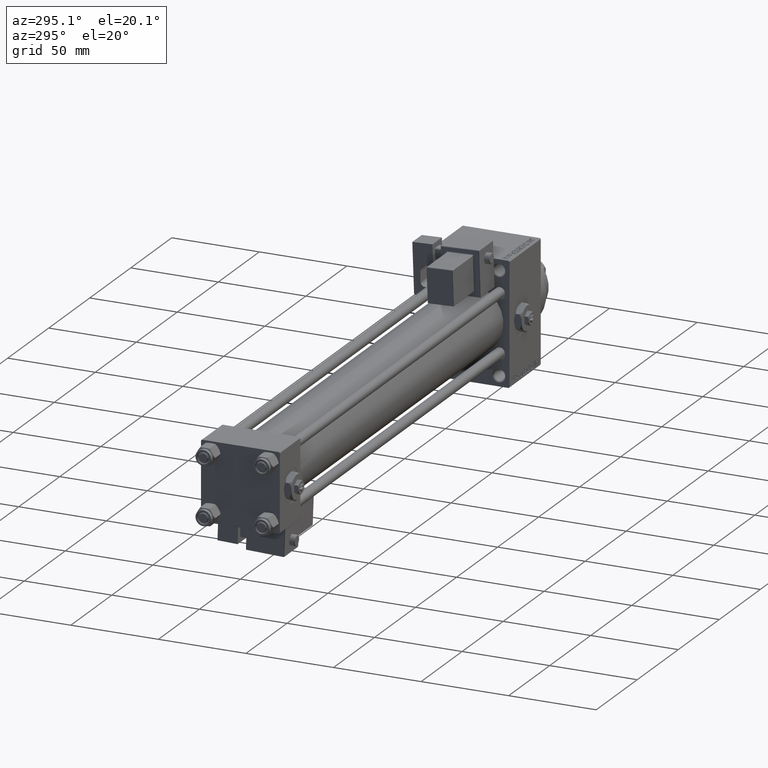
[diagram: clean part render]
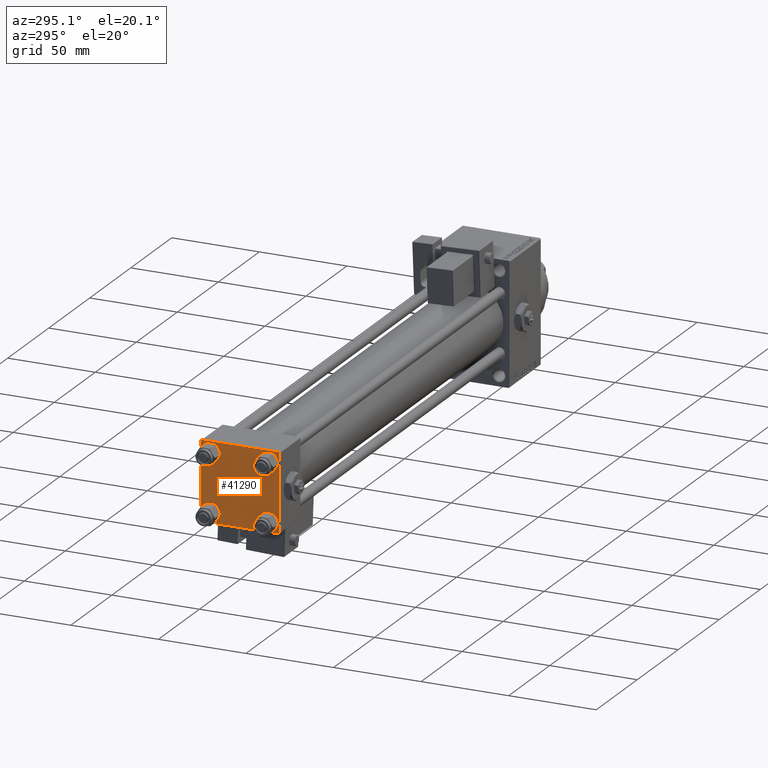
[diagram: same view with one face highlighted and labeled with its STEP entity id]
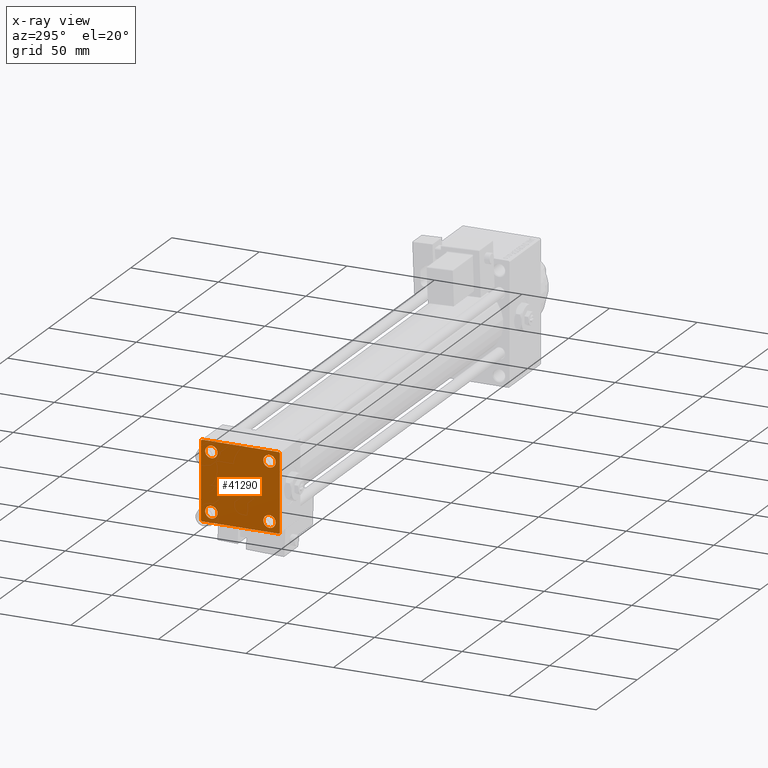
[diagram: x-ray of the same camera — body ghosted, the highlighted face saturated]
A machine part, auxiliary view. The second image highlights one B-rep face of the part: STEP entity #41290.
The next image is the same camera in x-ray: the body ghosted, the highlighted face saturated — about 0% of this face is hidden behind the body in this view.
In plain terms, the highlighted planar face has unit normal (-1, 0, 0).
Its self-contained STEP definition (entity closure, byte-faithful):
#732 = CARTESIAN_POINT ( 'NONE',  ( 0.000000000000000000, 22.24999999999999645, 22.24999999999999645 ) ) ;
#1467 = ORIENTED_EDGE ( 'NONE', *, *, #32945, .T. ) ;
#2297 = ORIENTED_EDGE ( 'NONE', *, *, #50184, .T. ) ;
#2436 = DIRECTION ( 'NONE',  ( 1.000000000000000000, -0.000000000000000000, 0.000000000000000000 ) ) ;
#2458 = CARTESIAN_POINT ( 'NONE',  ( 0.000000000000000000, 16.59999999999999787, -16.60000000000000497 ) ) ;
#2509 = AXIS2_PLACEMENT_3D ( 'NONE', #42312, #6231, #13745 ) ;
#2577 = FACE_BOUND ( 'NONE', #36856, .T. ) ;
#2979 = CARTESIAN_POINT ( 'NONE',  ( 0.000000000000000000, 16.59999999999999787, 13.10000000000000675 ) ) ;
#3406 = EDGE_CURVE ( 'NONE', #32761, #35693, #51348, .T. ) ;
#4151 = CARTESIAN_POINT ( 'NONE',  ( 0.000000000000000000, 22.25000000000014566, -22.24999999999984013 ) ) ;
#4380 = DIRECTION ( 'NONE',  ( 0.000000000000000000, -1.000000000000000000, -2.312964634635742957E-16 ) ) ;
#4607 = DIRECTION ( 'NONE',  ( -0.000000000000000000, 0.7071067811865525687, 0.7071067811865425767 ) ) ;
#5542 = CARTESIAN_POINT ( 'NONE',  ( 0.000000000000000000, -22.50000000000000000, 22.50000000000000000 ) ) ;
#5973 = FACE_BOUND ( 'NONE', #46981, .T. ) ;
#6231 = DIRECTION ( 'NONE',  ( -1.000000000000000000, 0.000000000000000000, -0.000000000000000000 ) ) ;
#6903 = ORIENTED_EDGE ( 'NONE', *, *, #28215, .T. ) ;
#7039 = DIRECTION ( 'NONE',  ( 1.000000000000000000, -0.000000000000000000, 0.000000000000000000 ) ) ;
#7928 = CARTESIAN_POINT ( 'NONE',  ( 0.000000000000000000, 16.59999999999999787, 20.10000000000000142 ) ) ;
#9060 = LINE ( 'NONE', #4151, #42971 ) ;
#9703 = ORIENTED_EDGE ( 'NONE', *, *, #19402, .T. ) ;
#11177 = CARTESIAN_POINT ( 'NONE',  ( 0.000000000000000000, -16.59999999999999076, -16.60000000000000853 ) ) ;
#12330 = VECTOR ( 'NONE', #12802, 1000.000000000000000 ) ;
#12411 = CARTESIAN_POINT ( 'NONE',  ( 0.000000000000000000, 22.50000000000000000, -22.49999999999999645 ) ) ;
#12802 = DIRECTION ( 'NONE',  ( 0.000000000000000000, -0.7071067811865426878, 0.7071067811865524577 ) ) ;
#13253 = CARTESIAN_POINT ( 'NONE',  ( 0.000000000000000000, 16.59999999999999787, -20.10000000000000142 ) ) ;
#13440 = CARTESIAN_POINT ( 'NONE',  ( 0.000000000000000000, 16.59999999999999787, 16.60000000000000497 ) ) ;
#13745 = DIRECTION ( 'NONE',  ( -0.000000000000000000, 0.000000000000000000, 1.000000000000000000 ) ) ;
#13999 = FACE_OUTER_BOUND ( 'NONE', #36561, .T. ) ;
#14393 = DIRECTION ( 'NONE',  ( 0.000000000000000000, 0.000000000000000000, 1.000000000000000000 ) ) ;
#14531 = CARTESIAN_POINT ( 'NONE',  ( 0.000000000000000000, -22.50000000000000000, 22.00000000000000000 ) ) ;
#14808 = VERTEX_POINT ( 'NONE', #13253 ) ;
#15399 = ORIENTED_EDGE ( 'NONE', *, *, #18984, .T. ) ;
#15632 = CARTESIAN_POINT ( 'NONE',  ( 0.000000000000000000, -16.59999999999999076, 13.10000000000001030 ) ) ;
#15953 = ORIENTED_EDGE ( 'NONE', *, *, #40750, .T. ) ;
#17089 = ORIENTED_EDGE ( 'NONE', *, *, #42544, .T. ) ;
#17301 = EDGE_CURVE ( 'NONE', #48600, #28225, #30448, .T. ) ;
#17736 = CARTESIAN_POINT ( 'NONE',  ( 0.000000000000000000, 22.50000000000000000, 22.50000000000000355 ) ) ;
#17988 = LINE ( 'NONE', #5542, #31398 ) ;
#18330 = AXIS2_PLACEMENT_3D ( 'NONE', #21908, #2436, #50207 ) ;
#18943 = ORIENTED_EDGE ( 'NONE', *, *, #37354, .F. ) ;
#18984 = EDGE_CURVE ( 'NONE', #31241, #23080, #30478, .T. ) ;
#19219 = DIRECTION ( 'NONE',  ( 0.000000000000000000, 0.000000000000000000, 1.000000000000000000 ) ) ;
#19402 = EDGE_CURVE ( 'NONE', #23080, #29144, #9060, .T. ) ;
#19443 = CARTESIAN_POINT ( 'NONE',  ( 0.000000000000000000, -16.59999999999999076, 16.60000000000000853 ) ) ;
#19498 = EDGE_CURVE ( 'NONE', #36280, #35693, #29573, .T. ) ;
#20007 = CARTESIAN_POINT ( 'NONE',  ( 0.000000000000000000, -16.59999999999999076, 20.10000000000000853 ) ) ;
#20245 = DIRECTION ( 'NONE',  ( -0.000000000000000000, -0.7071067811865426878, -0.7071067811865524577 ) ) ;
#20307 = VECTOR ( 'NONE', #35534, 1000.000000000000114 ) ;
#20705 = CIRCLE ( 'NONE', #30696, 3.499999999999996003 ) ;
#21460 = VERTEX_POINT ( 'NONE', #39665 ) ;
#21527 = PLANE ( 'NONE',  #2509 ) ;
#21908 = CARTESIAN_POINT ( 'NONE',  ( 0.000000000000000000, -16.59999999999999076, 16.60000000000000853 ) ) ;
#22030 = CARTESIAN_POINT ( 'NONE',  ( 0.000000000000000000, 16.59999999999999787, 16.60000000000000497 ) ) ;
#22500 = CARTESIAN_POINT ( 'NONE',  ( 0.000000000000000000, 16.59999999999999787, -16.60000000000000497 ) ) ;
#22868 = AXIS2_PLACEMENT_3D ( 'NONE', #2458, #49976, #14393 ) ;
#23080 = VERTEX_POINT ( 'NONE', #51179 ) ;
#23262 = AXIS2_PLACEMENT_3D ( 'NONE', #22500, #34202, #37314 ) ;
#25453 = AXIS2_PLACEMENT_3D ( 'NONE', #13440, #44884, #48521 ) ;
#25664 = DIRECTION ( 'NONE',  ( 0.000000000000000000, 0.000000000000000000, 1.000000000000000000 ) ) ;
#25876 = DIRECTION ( 'NONE',  ( 0.000000000000000000, 0.000000000000000000, 1.000000000000000000 ) ) ;
#26534 = EDGE_CURVE ( 'NONE', #36280, #31241, #44095, .T. ) ;
#27251 = LINE ( 'NONE', #12411, #42823 ) ;
#28215 = EDGE_CURVE ( 'NONE', #14808, #32443, #41145, .T. ) ;
#28225 = VERTEX_POINT ( 'NONE', #2979 ) ;
#29144 = VERTEX_POINT ( 'NONE', #30779 ) ;
#29573 = LINE ( 'NONE', #33988, #47120 ) ;
#29805 = ORIENTED_EDGE ( 'NONE', *, *, #26534, .T. ) ;
#30448 = CIRCLE ( 'NONE', #25453, 3.499999999999996003 ) ;
#30478 = LINE ( 'NONE', #17736, #32999 ) ;
#30696 = AXIS2_PLACEMENT_3D ( 'NONE', #22030, #37885, #25664 ) ;
#30779 = CARTESIAN_POINT ( 'NONE',  ( 0.000000000000000000, 21.99999999999999289, -22.49999999999999645 ) ) ;
#30808 = AXIS2_PLACEMENT_3D ( 'NONE', #11177, #7039, #19219 ) ;
#30901 = CARTESIAN_POINT ( 'NONE',  ( 0.000000000000000000, -22.50000000000000000, -21.99999999999997158 ) ) ;
#31241 = VERTEX_POINT ( 'NONE', #45578 ) ;
#31398 = VECTOR ( 'NONE', #37209, 1000.000000000000000 ) ;
#31514 = CARTESIAN_POINT ( 'NONE',  ( 0.000000000000000000, -21.99999999999997868, 22.50000000000000000 ) ) ;
#32007 = EDGE_CURVE ( 'NONE', #29144, #49227, #27251, .T. ) ;
#32443 = VERTEX_POINT ( 'NONE', #49141 ) ;
#32644 = ORIENTED_EDGE ( 'NONE', *, *, #37222, .T. ) ;
#32761 = VERTEX_POINT ( 'NONE', #14531 ) ;
#32813 = VERTEX_POINT ( 'NONE', #30901 ) ;
#32945 = EDGE_CURVE ( 'NONE', #39356, #36235, #38710, .T. ) ;
#32999 = VECTOR ( 'NONE', #49164, 1000.000000000000000 ) ;
#33988 = CARTESIAN_POINT ( 'NONE',  ( 0.000000000000000000, 22.50000000000000000, 22.50000000000000355 ) ) ;
#34202 = DIRECTION ( 'NONE',  ( 1.000000000000000000, -0.000000000000000000, 0.000000000000000000 ) ) ;
#34558 = CARTESIAN_POINT ( 'NONE',  ( 0.000000000000000000, -21.99999999999997158, -22.50000000000000711 ) ) ;
#34693 = VERTEX_POINT ( 'NONE', #43263 ) ;
#35296 = DIRECTION ( 'NONE',  ( 1.000000000000000000, -0.000000000000000000, 0.000000000000000000 ) ) ;
#35534 = DIRECTION ( 'NONE',  ( 0.000000000000000000, 0.7071067811865474617, -0.7071067811865474617 ) ) ;
#35693 = VERTEX_POINT ( 'NONE', #31514 ) ;
#35733 = CIRCLE ( 'NONE', #23262, 3.499999999999996003 ) ;
#35948 = LINE ( 'NONE', #39846, #12330 ) ;
#36235 = VERTEX_POINT ( 'NONE', #20007 ) ;
#36280 = VERTEX_POINT ( 'NONE', #48567 ) ;
#36561 = EDGE_LOOP ( 'NONE', ( #15399, #9703, #45476, #32644, #18943, #42310, #42263, #29805 ) ) ;
#36574 = CIRCLE ( 'NONE', #18330, 3.499999999999996003 ) ;
#36856 = EDGE_LOOP ( 'NONE', ( #45359, #50256 ) ) ;
#37209 = DIRECTION ( 'NONE',  ( 0.000000000000000000, 0.000000000000000000, -1.000000000000000000 ) ) ;
#37222 = EDGE_CURVE ( 'NONE', #49227, #32813, #35948, .T. ) ;
#37314 = DIRECTION ( 'NONE',  ( 0.000000000000000000, 0.000000000000000000, 1.000000000000000000 ) ) ;
#37354 = EDGE_CURVE ( 'NONE', #32761, #32813, #17988, .T. ) ;
#37885 = DIRECTION ( 'NONE',  ( 1.000000000000000000, -0.000000000000000000, 0.000000000000000000 ) ) ;
#38161 = FACE_BOUND ( 'NONE', #45889, .T. ) ;
#38710 = CIRCLE ( 'NONE', #39557, 3.499999999999996003 ) ;
#39356 = VERTEX_POINT ( 'NONE', #15632 ) ;
#39557 = AXIS2_PLACEMENT_3D ( 'NONE', #19443, #35296, #40221 ) ;
#39665 = CARTESIAN_POINT ( 'NONE',  ( 0.000000000000000000, -16.59999999999999076, -20.10000000000000497 ) ) ;
#39762 = EDGE_CURVE ( 'NONE', #28225, #48600, #20705, .T. ) ;
#39846 = CARTESIAN_POINT ( 'NONE',  ( 0.000000000000000000, -22.25000000000014566, -22.24999999999984013 ) ) ;
#40221 = DIRECTION ( 'NONE',  ( 0.000000000000000000, 0.000000000000000000, 1.000000000000000000 ) ) ;
#40750 = EDGE_CURVE ( 'NONE', #34693, #21460, #48947, .T. ) ;
#40818 = VECTOR ( 'NONE', #4607, 999.9999999999998863 ) ;
#41145 = CIRCLE ( 'NONE', #22868, 3.499999999999996003 ) ;
#41290 = ADVANCED_FACE ( 'NONE', ( #38161, #5973, #41802, #2577, #13999 ), #21527, .T. ) ;
#41556 = CIRCLE ( 'NONE', #30808, 3.499999999999996003 ) ;
#41575 = EDGE_CURVE ( 'NONE', #32443, #14808, #35733, .T. ) ;
#41710 = EDGE_LOOP ( 'NONE', ( #47135, #6903 ) ) ;
#41802 = FACE_BOUND ( 'NONE', #41710, .T. ) ;
#41984 = CARTESIAN_POINT ( 'NONE',  ( 0.000000000000000000, -16.59999999999999076, -16.60000000000000853 ) ) ;
#42263 = ORIENTED_EDGE ( 'NONE', *, *, #19498, .F. ) ;
#42310 = ORIENTED_EDGE ( 'NONE', *, *, #3406, .T. ) ;
#42312 = CARTESIAN_POINT ( 'NONE',  ( 0.000000000000000000, 0.000000000000000000, 0.000000000000000000 ) ) ;
#42544 = EDGE_CURVE ( 'NONE', #36235, #39356, #36574, .T. ) ;
#42823 = VECTOR ( 'NONE', #4380, 1000.000000000000000 ) ;
#42971 = VECTOR ( 'NONE', #20245, 1000.000000000000000 ) ;
#43263 = CARTESIAN_POINT ( 'NONE',  ( 0.000000000000000000, -16.59999999999999076, -13.10000000000001030 ) ) ;
#43309 = CARTESIAN_POINT ( 'NONE',  ( -0.000000000000000000, -22.24999999999984013, 22.25000000000015277 ) ) ;
#44095 = LINE ( 'NONE', #732, #20307 ) ;
#44884 = DIRECTION ( 'NONE',  ( 1.000000000000000000, -0.000000000000000000, 0.000000000000000000 ) ) ;
#45359 = ORIENTED_EDGE ( 'NONE', *, *, #17301, .T. ) ;
#45416 = DIRECTION ( 'NONE',  ( 0.000000000000000000, -1.000000000000000000, -7.709882115452476934E-17 ) ) ;
#45476 = ORIENTED_EDGE ( 'NONE', *, *, #32007, .T. ) ;
#45578 = CARTESIAN_POINT ( 'NONE',  ( 0.000000000000000000, 22.50000000000000000, 21.99999999999999645 ) ) ;
#45889 = EDGE_LOOP ( 'NONE', ( #17089, #1467 ) ) ;
#46140 = DIRECTION ( 'NONE',  ( 1.000000000000000000, -0.000000000000000000, 0.000000000000000000 ) ) ;
#46981 = EDGE_LOOP ( 'NONE', ( #15953, #2297 ) ) ;
#47120 = VECTOR ( 'NONE', #45416, 1000.000000000000000 ) ;
#47135 = ORIENTED_EDGE ( 'NONE', *, *, #41575, .T. ) ;
#48139 = AXIS2_PLACEMENT_3D ( 'NONE', #41984, #46140, #25876 ) ;
#48521 = DIRECTION ( 'NONE',  ( 0.000000000000000000, 0.000000000000000000, 1.000000000000000000 ) ) ;
#48567 = CARTESIAN_POINT ( 'NONE',  ( 0.000000000000000000, 21.99999999999999289, 22.50000000000000355 ) ) ;
#48600 = VERTEX_POINT ( 'NONE', #7928 ) ;
#48947 = CIRCLE ( 'NONE', #48139, 3.499999999999996003 ) ;
#49141 = CARTESIAN_POINT ( 'NONE',  ( 0.000000000000000000, 16.59999999999999787, -13.10000000000000675 ) ) ;
#49164 = DIRECTION ( 'NONE',  ( 0.000000000000000000, 0.000000000000000000, -1.000000000000000000 ) ) ;
#49227 = VERTEX_POINT ( 'NONE', #34558 ) ;
#49976 = DIRECTION ( 'NONE',  ( 1.000000000000000000, -0.000000000000000000, 0.000000000000000000 ) ) ;
#50184 = EDGE_CURVE ( 'NONE', #21460, #34693, #41556, .T. ) ;
#50207 = DIRECTION ( 'NONE',  ( 0.000000000000000000, 0.000000000000000000, 1.000000000000000000 ) ) ;
#50256 = ORIENTED_EDGE ( 'NONE', *, *, #39762, .T. ) ;
#51179 = CARTESIAN_POINT ( 'NONE',  ( 0.000000000000000000, 22.50000000000000000, -21.99999999999996803 ) ) ;
#51348 = LINE ( 'NONE', #43309, #40818 ) ;